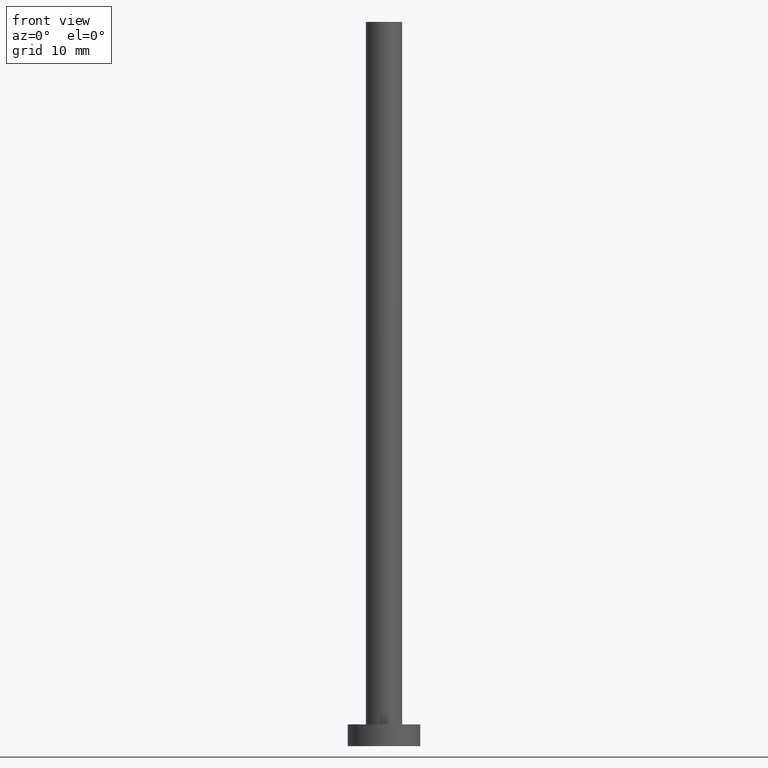
[diagram: clean part render]
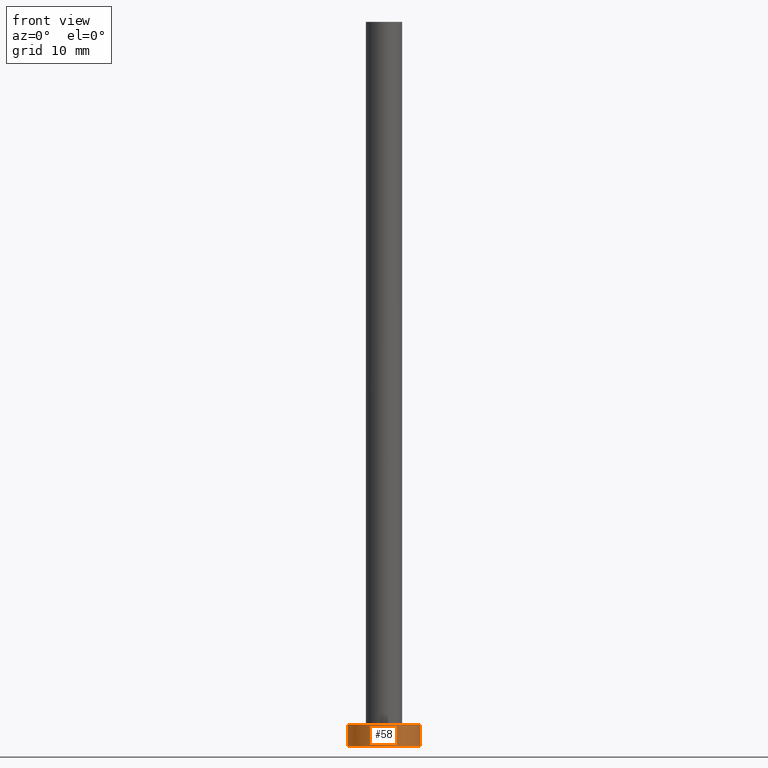
[diagram: same view with one face highlighted and labeled with its STEP entity id]
A machine part, front view. The second image highlights one B-rep face of the part: STEP entity #58.
In plain terms, the highlighted cylindrical surface (edge-blend (fillet) strip) has radius 5 mm, axis along (-0, -0, -1).
Its self-contained STEP definition (entity closure, byte-faithful):
#7 = VECTOR ( 'NONE', #96, 1000.000000000000000 ) ;
#24 = VECTOR ( 'NONE', #98, 1000.000000000000000 ) ;
#49 = ORIENTED_EDGE ( 'NONE', *, *, #125, .F. ) ;
#55 = CARTESIAN_POINT ( 'NONE',  ( 5.000000000000000000, 6.123233995736766282E-16, 0.000000000000000000 ) ) ;
#58 = ADVANCED_FACE ( 'NONE', ( #105 ), #220, .T. ) ;
#65 = EDGE_CURVE ( 'NONE', #217, #121, #209, .T. ) ;
#68 = DIRECTION ( 'NONE',  ( 0.000000000000000000, 0.000000000000000000, 1.000000000000000000 ) ) ;
#71 = LINE ( 'NONE', #190, #24 ) ;
#72 = LINE ( 'NONE', #128, #7 ) ;
#89 = CARTESIAN_POINT ( 'NONE',  ( 0.000000000000000000, 0.000000000000000000, 0.000000000000000000 ) ) ;
#93 = DIRECTION ( 'NONE',  ( 1.000000000000000000, 0.000000000000000000, 0.000000000000000000 ) ) ;
#96 = DIRECTION ( 'NONE',  ( -0.000000000000000000, -0.000000000000000000, -1.000000000000000000 ) ) ;
#98 = DIRECTION ( 'NONE',  ( -0.000000000000000000, -0.000000000000000000, -1.000000000000000000 ) ) ;
#103 = CARTESIAN_POINT ( 'NONE',  ( 0.000000000000000000, 0.000000000000000000, 3.000000000000000000 ) ) ;
#104 = EDGE_CURVE ( 'NONE', #155, #121, #71, .T. ) ;
#105 = FACE_OUTER_BOUND ( 'NONE', #140, .T. ) ;
#111 = CIRCLE ( 'NONE', #129, 5.000000000000000000 ) ;
#114 = CARTESIAN_POINT ( 'NONE',  ( -5.000000000000000000, 0.000000000000000000, 3.000000000000000000 ) ) ;
#121 = VERTEX_POINT ( 'NONE', #55 ) ;
#125 = EDGE_CURVE ( 'NONE', #184, #155, #111, .T. ) ;
#127 = CARTESIAN_POINT ( 'NONE',  ( 0.000000000000000000, 0.000000000000000000, 3.000000000000000000 ) ) ;
#128 = CARTESIAN_POINT ( 'NONE',  ( -5.000000000000000000, 0.000000000000000000, 3.000000000000000000 ) ) ;
#129 = AXIS2_PLACEMENT_3D ( 'NONE', #127, #68, #93 ) ;
#140 = EDGE_LOOP ( 'NONE', ( #176, #49, #201, #183 ) ) ;
#155 = VERTEX_POINT ( 'NONE', #204 ) ;
#166 = DIRECTION ( 'NONE',  ( 1.000000000000000000, 0.000000000000000000, 0.000000000000000000 ) ) ;
#174 = EDGE_CURVE ( 'NONE', #184, #217, #72, .T. ) ;
#176 = ORIENTED_EDGE ( 'NONE', *, *, #104, .F. ) ;
#179 = DIRECTION ( 'NONE',  ( -1.000000000000000000, 0.000000000000000000, 0.000000000000000000 ) ) ;
#183 = ORIENTED_EDGE ( 'NONE', *, *, #65, .T. ) ;
#184 = VERTEX_POINT ( 'NONE', #114 ) ;
#187 = DIRECTION ( 'NONE',  ( 0.000000000000000000, 0.000000000000000000, 1.000000000000000000 ) ) ;
#190 = CARTESIAN_POINT ( 'NONE',  ( 5.000000000000000000, 6.123233995736766282E-16, 3.000000000000000000 ) ) ;
#201 = ORIENTED_EDGE ( 'NONE', *, *, #174, .T. ) ;
#202 = DIRECTION ( 'NONE',  ( -0.000000000000000000, -0.000000000000000000, -1.000000000000000000 ) ) ;
#204 = CARTESIAN_POINT ( 'NONE',  ( 5.000000000000000000, 6.123233995736766282E-16, 3.000000000000000000 ) ) ;
#209 = CIRCLE ( 'NONE', #246, 5.000000000000000000 ) ;
#217 = VERTEX_POINT ( 'NONE', #238 ) ;
#220 = CYLINDRICAL_SURFACE ( 'NONE', #253, 5.000000000000000000 ) ;
#238 = CARTESIAN_POINT ( 'NONE',  ( -5.000000000000000000, 0.000000000000000000, 0.000000000000000000 ) ) ;
#246 = AXIS2_PLACEMENT_3D ( 'NONE', #89, #187, #166 ) ;
#253 = AXIS2_PLACEMENT_3D ( 'NONE', #103, #202, #179 ) ;